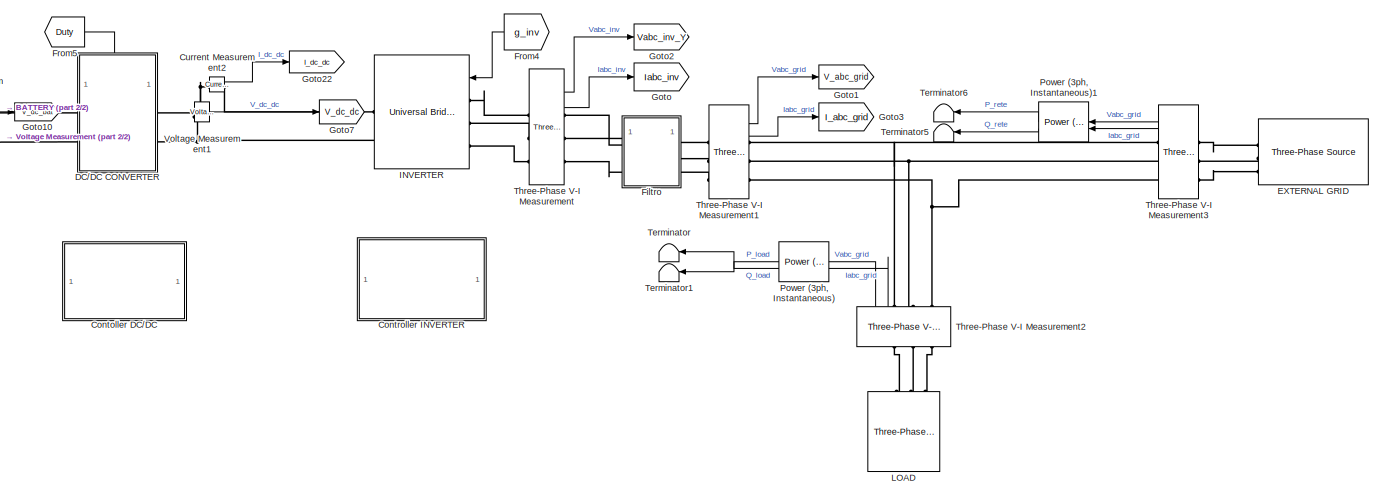
[diagram: root canvas - part 1/2, most of the canvas]
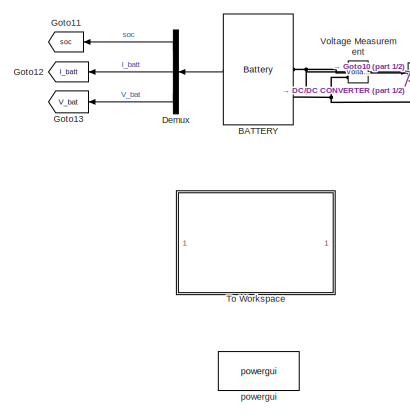
[diagram: root canvas - part 2/2, left side, full height]
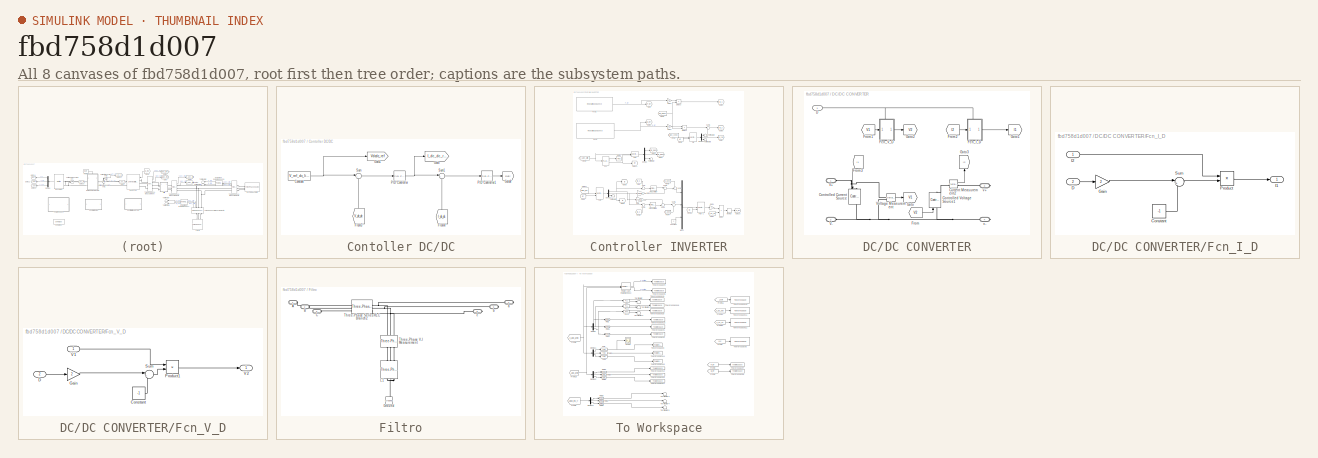
[diagram: thumbnail index - all 8 canvases of the model, root first then tree order]
MODEL slx_fbd758d1d007
KIND model
CONFIG AbsTol = auto
CONFIG EnableMultiTasking = off
CONFIG FixedStep = auto
CONFIG MaxStep = auto
CONFIG MinStep = auto
CONFIG RelTol = 1e-3
CONFIG SampleTimeConstraint = Unconstrained
CONFIG SolverName = FixedStepDiscrete
CONFIG StartTime = 0.0
CONFIG StopTime = 30000
BLOCK [Reference] BATTERY  REF=spsBatteryLib/Battery
  SourceBlock = spsBatteryLib/Battery
  SourceType = Battery
BLOCK [SubSystem] Contoller DC//DC
BLOCK [Constant] Contoller DC//DC/Constant
  Value = V_ref_dc_link
BLOCK [From] Contoller DC//DC/From4
  GotoTag = I_dc_dc
  NameLocation = right
  TagVisibility = global
BLOCK [From] Contoller DC//DC/From5
  GotoTag = V_dc_dc
  NameLocation = right
  TagVisibility = global
BLOCK [Goto] Contoller DC//DC/Goto
  GotoTag = I_dc_dc_ref
  TagVisibility = global
BLOCK [Goto] Contoller DC//DC/Goto1
  GotoTag = Vdcdc_ref
  TagVisibility = global
BLOCK [Goto] Contoller DC//DC/Goto8
  GotoTag = Duty
  TagVisibility = global
BLOCK [Reference] Contoller DC//DC/PID Controller  REF=slpidlib/PID Controller
  SourceBlock = slpidlib/PID Controller
  SourceType = PID 1dof
BLOCK [Reference] Contoller DC//DC/PID Controller1  REF=slpidlib/PID Controller
  SourceBlock = slpidlib/PID Controller
  SourceType = PID 1dof
BLOCK [Sum] Contoller DC//DC/Sum
  Inputs = |+-
BLOCK [Sum] Contoller DC//DC/Sum1
  Inputs = |+-
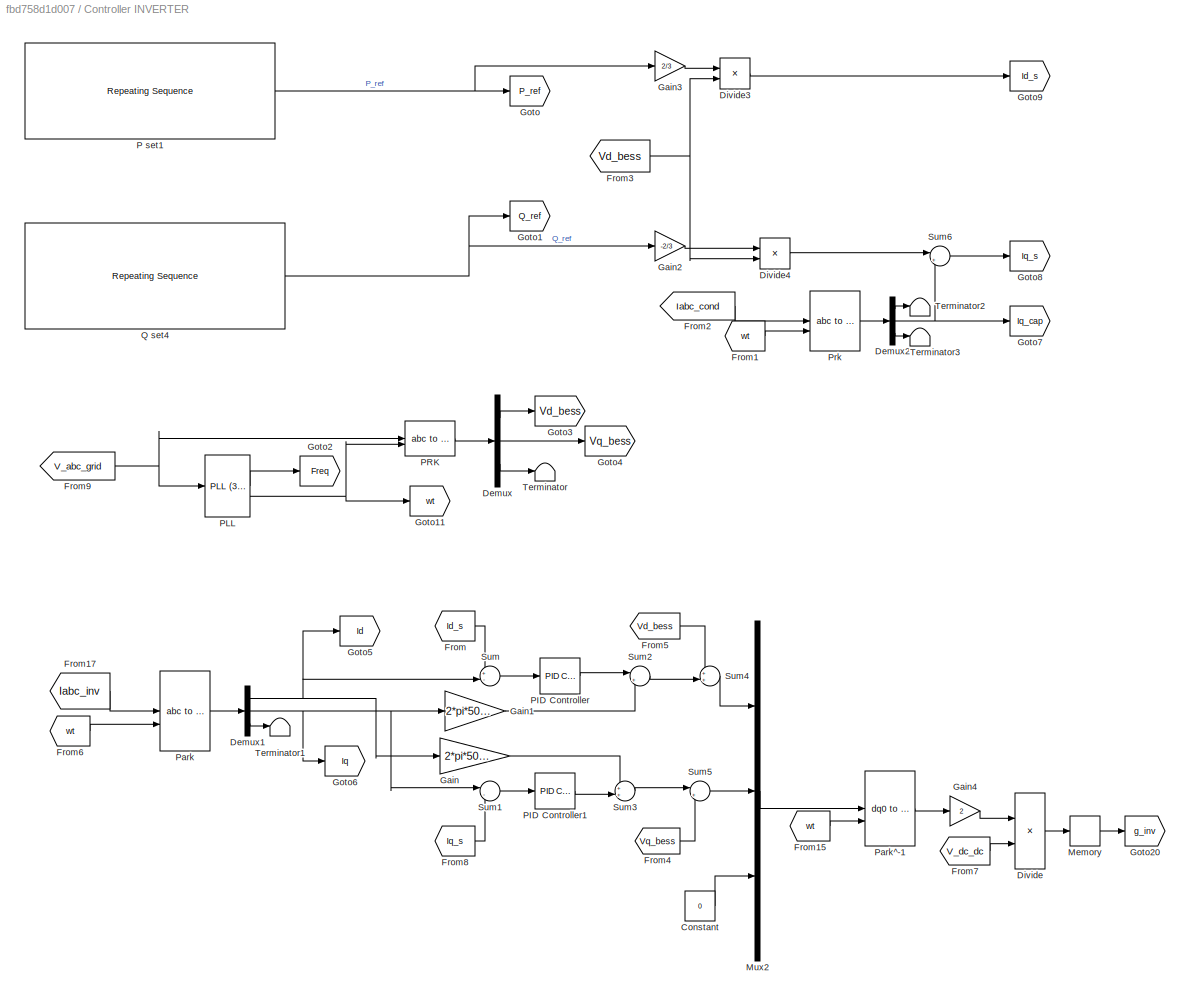
BLOCK [SubSystem] Controller INVERTER
BLOCK [Constant] Controller INVERTER/Constant
  Value = 0
BLOCK [Demux] Controller INVERTER/Demux
  Outputs = 3
BLOCK [Demux] Controller INVERTER/Demux1
  Outputs = 3
BLOCK [Demux] Controller INVERTER/Demux2
  Outputs = 3
BLOCK [Product] Controller INVERTER/Divide
  Inputs = */
BLOCK [Product] Controller INVERTER/Divide3
  Inputs = */
  NameLocation = top
BLOCK [Product] Controller INVERTER/Divide4
  Inputs = */
  NameLocation = top
BLOCK [From] Controller INVERTER/From
  GotoTag = Id_s
  TagVisibility = global
BLOCK [From] Controller INVERTER/From1
  GotoTag = wt
  TagVisibility = global
BLOCK [From] Controller INVERTER/From15
  GotoTag = wt
  TagVisibility = global
BLOCK [From] Controller INVERTER/From17
  GotoTag = Iabc_inv
  NameLocation = top
  TagVisibility = global
BLOCK [From] Controller INVERTER/From2
  GotoTag = Iabc_cond
  TagVisibility = global
BLOCK [From] Controller INVERTER/From3
  GotoTag = Vd_bess
  TagVisibility = global
BLOCK [From] Controller INVERTER/From4
  GotoTag = Vq_bess
  TagVisibility = global
BLOCK [From] Controller INVERTER/From5
  GotoTag = Vd_bess
  TagVisibility = global
BLOCK [From] Controller INVERTER/From6
  GotoTag = wt
  TagVisibility = global
BLOCK [From] Controller INVERTER/From7
  GotoTag = V_dc_dc
  TagVisibility = global
BLOCK [From] Controller INVERTER/From8
  GotoTag = Iq_s
  TagVisibility = global
BLOCK [From] Controller INVERTER/From9
  GotoTag = V_abc_grid
  TagVisibility = global
BLOCK [Gain] Controller INVERTER/Gain
  Gain = 2*pi*50*lf
BLOCK [Gain] Controller INVERTER/Gain1
  Gain = 2*pi*50*lf
BLOCK [Gain] Controller INVERTER/Gain2
  Gain = -2/3
BLOCK [Gain] Controller INVERTER/Gain3
  Gain = 2/3
BLOCK [Gain] Controller INVERTER/Gain4
  Gain = 2
BLOCK [Goto] Controller INVERTER/Goto
  GotoTag = P_ref
  TagVisibility = global
BLOCK [Goto] Controller INVERTER/Goto1
  GotoTag = Q_ref
  TagVisibility = global
BLOCK [Goto] Controller INVERTER/Goto11
  GotoTag = wt
  TagVisibility = global
BLOCK [Goto] Controller INVERTER/Goto2
  GotoTag = Freq
  TagVisibility = global
BLOCK [Goto] Controller INVERTER/Goto20
  GotoTag = g_inv
  TagVisibility = global
BLOCK [Goto] Controller INVERTER/Goto3
  GotoTag = Vd_bess
  TagVisibility = global
BLOCK [Goto] Controller INVERTER/Goto4
  GotoTag = Vq_bess
  TagVisibility = global
BLOCK [Goto] Controller INVERTER/Goto5
  GotoTag = Id
  TagVisibility = global
BLOCK [Goto] Controller INVERTER/Goto6
  GotoTag = Iq
  TagVisibility = global
BLOCK [Goto] Controller INVERTER/Goto7
  GotoTag = Iq_cap
  TagVisibility = global
BLOCK [Goto] Controller INVERTER/Goto8
  GotoTag = Iq_s
  TagVisibility = global
BLOCK [Goto] Controller INVERTER/Goto9
  GotoTag = Id_s
  TagVisibility = global
BLOCK [Memory] Controller INVERTER/Memory
  InheritSampleTime = on
  InitialCondition = 0.1
BLOCK [Mux] Controller INVERTER/Mux2
  DisplayOption = bar
  Inputs = 3
BLOCK [Reference] Controller INVERTER/P set1  REF=simulink/Sources/Repeating
Sequence
  NameLocation = top
  SourceBlock = simulink/Sources/Repeating\nSequence
  SourceType = Repeating table
BLOCK [Reference] Controller INVERTER/PID Controller  REF=slpidlib/PID Controller
  SourceBlock = slpidlib/PID Controller
  SourceType = PID 1dof
BLOCK [Reference] Controller INVERTER/PID Controller1  REF=slpidlib/PID Controller
  SourceBlock = slpidlib/PID Controller
  SourceType = PID 1dof
BLOCK [Reference] Controller INVERTER/PLL  REF=spsPLL3phLib/PLL
(3ph)
  SourceBlock = spsPLL3phLib/PLL\n(3ph)
  SourceType = PLL (3ph)
BLOCK [Reference] Controller INVERTER/PRK  REF=spsabctodq0Lib/abc to dq0
  SourceBlock = spsabctodq0Lib/abc to dq0
  SourceType = abc to dq0 Transformation
BLOCK [Reference] Controller INVERTER/Park  REF=spsabctodq0Lib/abc to dq0
  SourceBlock = spsabctodq0Lib/abc to dq0
  SourceType = abc to dq0 Transformation
BLOCK [Reference] Controller INVERTER/Park^-1  REF=spsdq0toabcLib/dq0 to abc
  SourceBlock = spsdq0toabcLib/dq0 to abc
  SourceType = dq0 to abc Transformation
BLOCK [Reference] Controller INVERTER/Prk  REF=spsabctodq0Lib/abc to dq0
  SourceBlock = spsabctodq0Lib/abc to dq0
  SourceType = abc to dq0 Transformation
BLOCK [Reference] Controller INVERTER/Q set4  REF=simulink/Sources/Repeating
Sequence
  NameLocation = top
  SourceBlock = simulink/Sources/Repeating\nSequence
  SourceType = Repeating table
BLOCK [Sum] Controller INVERTER/Sum
  Inputs = +-|
BLOCK [Sum] Controller INVERTER/Sum1
  Inputs = |-+
BLOCK [Sum] Controller INVERTER/Sum2
  Inputs = |+-
BLOCK [Sum] Controller INVERTER/Sum3
  Inputs = ++|
BLOCK [Sum] Controller INVERTER/Sum4
  Inputs = ++|
BLOCK [Sum] Controller INVERTER/Sum5
  Inputs = |++
BLOCK [Sum] Controller INVERTER/Sum6
  Inputs = |++
BLOCK [Terminator] Controller INVERTER/Terminator
BLOCK [Terminator] Controller INVERTER/Terminator1
BLOCK [Terminator] Controller INVERTER/Terminator2
BLOCK [Terminator] Controller INVERTER/Terminator3
BLOCK [Reference] Current Measurement2  REF=spsCurrentMeasurementLib/Current Measurement
  SourceBlock = spsCurrentMeasurementLib/Current Measurement
  SourceType = Current Measurement
  UserDataPersistent = on
BLOCK [SubSystem] DC//DC CONVERTER
  PortSchema = {"entries":[{"content":{"sides":[{"content":{"connectorIds":["LConn1","LConn2"]},"type":"ConnectorPlacement.EquallySpacedRectSide","uuid":"1063a80c-0db9-4e6a-b0a1-ad7a8a9cb9ed"},{"content":{"connectorIds":["RConn1","RConn2"],"side":"RIGHT"},"type":"ConnectorPlacement.EquallySpacedRectSide","uuid":"d09a7538-6c2e-450d-96ff-912ee6979d92"},{"content":{"connectorIds":["In1"],"side":"TOP"},"type":"Conne...<+412ch>
BLOCK [Reference] DC//DC CONVERTER/Controlled Current Source  REF=spsControlledCurrentSourceLib/Controlled Current Source
  NameLocation = left
  SourceBlock = spsControlledCurrentSourceLib/Controlled Current Source
  SourceType = Controlled Current Source
BLOCK [Reference] DC//DC CONVERTER/Controlled Voltage Source1  REF=spsControlledVoltageSourceLib/Controlled Voltage Source
  NameLocation = right
  SourceBlock = spsControlledVoltageSourceLib/Controlled Voltage Source
  SourceType = Controlled Voltage Source
BLOCK [Reference] DC//DC CONVERTER/Current Measurement2  REF=spsCurrentMeasurementLib/Current Measurement
  SourceBlock = spsCurrentMeasurementLib/Current Measurement
  SourceType = Current Measurement
  UserDataPersistent = on
BLOCK [Inport] DC//DC CONVERTER/D
BLOCK [SubSystem] DC//DC CONVERTER/Fcn_I_D
  PortSchema = {"entries":[{"content":{"sides":[{"content":{"connectorIds":["In1"]},"type":"ConnectorPlacement.EquallySpacedRectSide","uuid":"c3b5bf8f-c0a6-4eff-a00e-7fb1c6213418"},{"content":{"connectorIds":["Out1"],"side":"RIGHT"},"type":"ConnectorPlacement.EquallySpacedRectSide","uuid":"03805e13-a53e-47ff-ab0e-f9f14d4ce48a"},{"content":{"connectorIds":["In2"],"side":"TOP"},"type":"ConnectorPlacement.EquallySp...<+389ch>
BLOCK [Constant] DC//DC CONVERTER/Fcn_I_D/Constant
  Value = -1
BLOCK [Inport] DC//DC CONVERTER/Fcn_I_D/D
  Port = 2
BLOCK [Gain] DC//DC CONVERTER/Fcn_I_D/Gain
  Gain = 2
BLOCK [Outport] DC//DC CONVERTER/Fcn_I_D/I1
BLOCK [Inport] DC//DC CONVERTER/Fcn_I_D/I2
BLOCK [Product] DC//DC CONVERTER/Fcn_I_D/Product
BLOCK [Sum] DC//DC CONVERTER/Fcn_I_D/Sum
  Inputs = |++
BLOCK [SubSystem] DC//DC CONVERTER/Fcn_V_D
  PortSchema = {"entries":[{"content":{"sides":[{"content":{"connectorIds":["In1"]},"type":"ConnectorPlacement.EquallySpacedRectSide","uuid":"c3b5bf8f-c0a6-4eff-a00e-7fb1c6213418"},{"content":{"connectorIds":["Out1"],"side":"RIGHT"},"type":"ConnectorPlacement.EquallySpacedRectSide","uuid":"03805e13-a53e-47ff-ab0e-f9f14d4ce48a"},{"content":{"connectorIds":["In2"],"side":"TOP"},"type":"ConnectorPlacement.EquallySp...<+389ch>
BLOCK [Constant] DC//DC CONVERTER/Fcn_V_D/Constant
  Value = -1
BLOCK [Inport] DC//DC CONVERTER/Fcn_V_D/D
  Port = 2
BLOCK [Gain] DC//DC CONVERTER/Fcn_V_D/Gain
  Gain = 2
BLOCK [Product] DC//DC CONVERTER/Fcn_V_D/Product1
BLOCK [Sum] DC//DC CONVERTER/Fcn_V_D/Sum
  Inputs = |++
BLOCK [Inport] DC//DC CONVERTER/Fcn_V_D/V1
BLOCK [Outport] DC//DC CONVERTER/Fcn_V_D/V2
BLOCK [From] DC//DC CONVERTER/From
  GotoTag = V2
  TagVisibility = global
BLOCK [From] DC//DC CONVERTER/From1
  GotoTag = V1
  TagVisibility = global
BLOCK [From] DC//DC CONVERTER/From2
  GotoTag = I2
  TagVisibility = global
BLOCK [From] DC//DC CONVERTER/From3
  GotoTag = I1
  NameLocation = left
  TagVisibility = global
BLOCK [Goto] DC//DC CONVERTER/Goto
  GotoTag = V1
  TagVisibility = global
BLOCK [Goto] DC//DC CONVERTER/Goto1
  GotoTag = I1
  TagVisibility = global
BLOCK [Goto] DC//DC CONVERTER/Goto2
  GotoTag = V2
  TagVisibility = global
BLOCK [Goto] DC//DC CONVERTER/Goto3
  GotoTag = I2
  NameLocation = right
  TagVisibility = global
BLOCK [PMIOPort] DC//DC CONVERTER/V+
  Side = Left
BLOCK [PMIOPort] DC//DC CONVERTER/V-
  Port = 2
  Side = Left
BLOCK [Reference] DC//DC CONVERTER/Voltage Measurement  REF=spsVoltageMeasurementLib/Voltage Measurement
  SourceBlock = spsVoltageMeasurementLib/Voltage Measurement
  SourceType = Voltage Measurement
  UserDataPersistent = on
BLOCK [PMIOPort] DC//DC CONVERTER/v+
  Port = 3
  Side = Right
BLOCK [PMIOPort] DC//DC CONVERTER/v-
  Port = 4
  Side = Right
BLOCK [Demux] Demux
  Outputs = 3
BLOCK [Reference] EXTERNAL GRID  REF=spsThreePhaseSourceLib/Three-Phase Source
  SourceBlock = spsThreePhaseSourceLib/Three-Phase Source
  SourceType = Three-Phase Source
BLOCK [SubSystem] Filtro
BLOCK [PMIOPort] Filtro/A
  Side = Left
BLOCK [PMIOPort] Filtro/B
  Port = 2
  Side = Left
BLOCK [PMIOPort] Filtro/C
  Port = 3
  Side = Left
BLOCK [Reference] Filtro/Ground  REF=spsGroundLib/Ground
  NameLocation = right
  SourceBlock = spsGroundLib/Ground
  SourceType = Ground
BLOCK [Reference] Filtro/L1  REF=spsThreePhaseSeriesRLCBranchLib/Three-Phase
Series RLC Branch
  AttributesFormatString = \n
  NameLocation = left
  SourceBlock = spsThreePhaseSeriesRLCBranchLib/Three-Phase\nSeries RLC Branch
  SourceType = Three-Phase Series RLC Branch
BLOCK [Reference] Filtro/Three-Phase Series RLC Branch2  REF=spsThreePhaseSeriesRLCBranchLib/Three-Phase
Series RLC Branch
  AttributesFormatString = \n
  SourceBlock = spsThreePhaseSeriesRLCBranchLib/Three-Phase\nSeries RLC Branch
  SourceType = Three-Phase Series RLC Branch
BLOCK [Reference] Filtro/Three-Phase V-I Measurement  REF=spsThreePhaseVIMeasurementLib/Three-Phase
V-I Measurement
  NameLocation = left
  SourceBlock = spsThreePhaseVIMeasurementLib/Three-Phase\nV-I Measurement
  SourceType = Three-Phase VI Measurement
BLOCK [PMIOPort] Filtro/a
  Port = 4
  Side = Right
BLOCK [PMIOPort] Filtro/b
  Port = 5
  Side = Right
BLOCK [PMIOPort] Filtro/c
  Port = 6
  Side = Right
BLOCK [From] From4
  GotoTag = g_inv
  TagVisibility = global
BLOCK [From] From5
  GotoTag = Duty
  TagVisibility = global
BLOCK [Goto] Goto
  GotoTag = Iabc_inv
  TagVisibility = global
BLOCK [Goto] Goto1
  GotoTag = V_abc_grid
  TagVisibility = global
BLOCK [Goto] Goto10
  GotoTag = V_dc_bat
  TagVisibility = global
BLOCK [Goto] Goto11
  GotoTag = soc
  TagVisibility = global
BLOCK [Goto] Goto12
  GotoTag = I_batt
  TagVisibility = global
BLOCK [Goto] Goto13
  GotoTag = V_bat
  TagVisibility = global
BLOCK [Goto] Goto2
  GotoTag = Vabc_inv_Y
  TagVisibility = global
BLOCK [Goto] Goto22
  GotoTag = I_dc_dc
  TagVisibility = global
BLOCK [Goto] Goto3
  GotoTag = I_abc_grid
  TagVisibility = global
BLOCK [Goto] Goto7
  GotoTag = V_dc_dc
  TagVisibility = global
BLOCK [Reference] INVERTER  REF=spsUniversalBridgeLib/Universal Bridge
  SourceBlock = spsUniversalBridgeLib/Universal Bridge
  SourceType = Universal Bridge
BLOCK [Reference] LOAD  REF=spsThreePhaseSeriesRLCLoadLib/Three-Phase
Series RLC Load
  AttributesFormatString = \n
  NameLocation = left
  SourceBlock = spsThreePhaseSeriesRLCLoadLib/Three-Phase\nSeries RLC Load
  SourceType = Three-Phase Series RLC Load
BLOCK [Reference] Power (3ph, Instantaneous)  REF=spsPower3phInstantaneousLib/Power
(3ph, Instantaneous)
  NameLocation = top
  SourceBlock = spsPower3phInstantaneousLib/Power\n(3ph, Instantaneous)
  SourceType = Power (3ph, Instantaneous)
BLOCK [Reference] Power (3ph, Instantaneous)1  REF=spsPower3phInstantaneousLib/Power
(3ph, Instantaneous)
  NameLocation = top
  SourceBlock = spsPower3phInstantaneousLib/Power\n(3ph, Instantaneous)
  SourceType = Power (3ph, Instantaneous)
BLOCK [Terminator] Terminator
  NameLocation = top
BLOCK [Terminator] Terminator1
  NameLocation = top
BLOCK [Terminator] Terminator5
  NameLocation = top
BLOCK [Terminator] Terminator6
  NameLocation = top
BLOCK [Reference] Three-Phase V-I Measurement  REF=spsThreePhaseVIMeasurementLib/Three-Phase
V-I Measurement
  NameLocation = top
  SourceBlock = spsThreePhaseVIMeasurementLib/Three-Phase\nV-I Measurement
  SourceType = Three-Phase VI Measurement
BLOCK [Reference] Three-Phase V-I Measurement1  REF=spsThreePhaseVIMeasurementLib/Three-Phase
V-I Measurement
  NameLocation = top
  SourceBlock = spsThreePhaseVIMeasurementLib/Three-Phase\nV-I Measurement
  SourceType = Three-Phase VI Measurement
BLOCK [Reference] Three-Phase V-I Measurement2  REF=spsThreePhaseVIMeasurementLib/Three-Phase
V-I Measurement
  NameLocation = left
  SourceBlock = spsThreePhaseVIMeasurementLib/Three-Phase\nV-I Measurement
  SourceType = Three-Phase VI Measurement
BLOCK [Reference] Three-Phase V-I Measurement3  REF=spsThreePhaseVIMeasurementLib/Three-Phase
V-I Measurement
  SourceBlock = spsThreePhaseVIMeasurementLib/Three-Phase\nV-I Measurement
  SourceType = Three-Phase VI Measurement
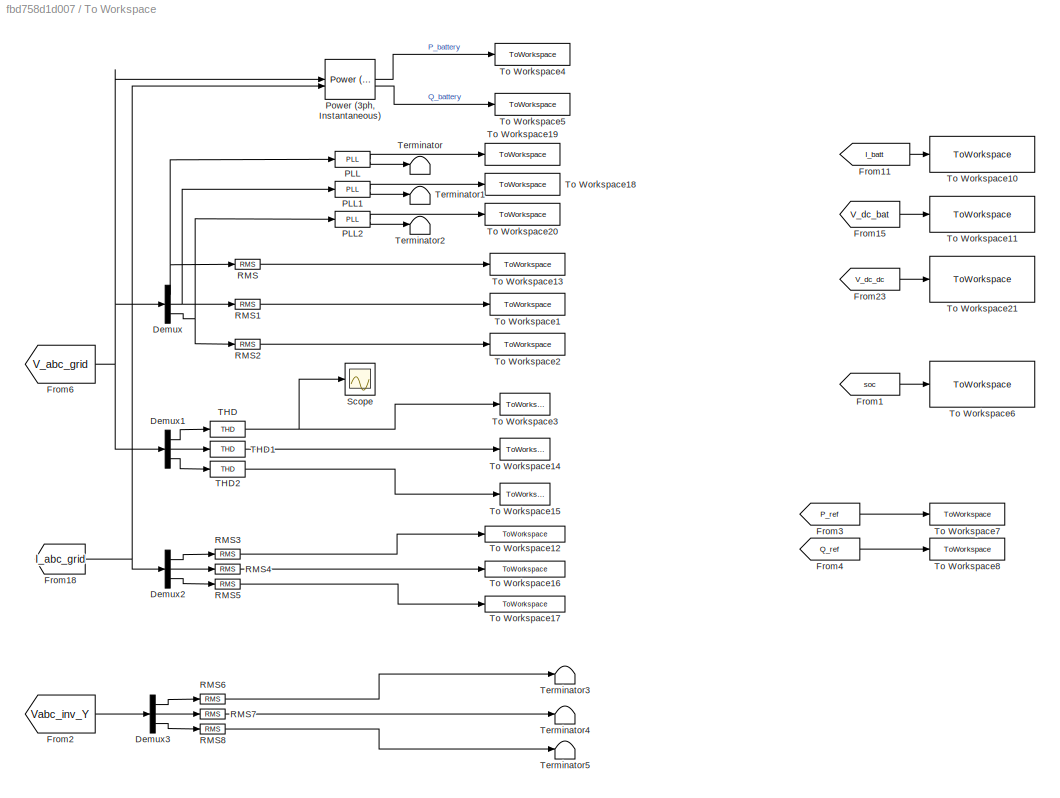
BLOCK [SubSystem] To Workspace
BLOCK [Demux] To Workspace/Demux
  Outputs = 3
BLOCK [Demux] To Workspace/Demux1
  Outputs = 3
BLOCK [Demux] To Workspace/Demux2
  Outputs = 3
BLOCK [Demux] To Workspace/Demux3
  Outputs = 3
BLOCK [From] To Workspace/From1
  GotoTag = soc
  TagVisibility = global
BLOCK [From] To Workspace/From11
  GotoTag = I_batt
  TagVisibility = global
BLOCK [From] To Workspace/From15
  GotoTag = V_dc_bat
  TagVisibility = global
BLOCK [From] To Workspace/From18
  GotoTag = I_abc_grid
  TagVisibility = global
BLOCK [From] To Workspace/From2
  GotoTag = Vabc_inv_Y
  TagVisibility = global
BLOCK [From] To Workspace/From23
  GotoTag = V_dc_dc
  TagVisibility = global
BLOCK [From] To Workspace/From3
  GotoTag = P_ref
  TagVisibility = global
BLOCK [From] To Workspace/From4
  GotoTag = Q_ref
  TagVisibility = global
BLOCK [From] To Workspace/From6
  GotoTag = V_abc_grid
  TagVisibility = global
BLOCK [Reference] To Workspace/PLL  REF=spsPLLLib/PLL
  SourceBlock = spsPLLLib/PLL
  SourceType = PLL
BLOCK [Reference] To Workspace/PLL1  REF=spsPLLLib/PLL
  SourceBlock = spsPLLLib/PLL
  SourceType = PLL
BLOCK [Reference] To Workspace/PLL2  REF=spsPLLLib/PLL
  SourceBlock = spsPLLLib/PLL
  SourceType = PLL
BLOCK [Reference] To Workspace/Power (3ph, Instantaneous)  REF=spsPower3phInstantaneousLib/Power
(3ph, Instantaneous)
  SourceBlock = spsPower3phInstantaneousLib/Power\n(3ph, Instantaneous)
  SourceType = Power (3ph, Instantaneous)
BLOCK [Reference] To Workspace/RMS  REF=spsRMSLib/RMS
  SourceBlock = spsRMSLib/RMS
  SourceType = RMS
BLOCK [Reference] To Workspace/RMS1  REF=spsRMSLib/RMS
  SourceBlock = spsRMSLib/RMS
  SourceType = RMS
BLOCK [Reference] To Workspace/RMS2  REF=spsRMSLib/RMS
  SourceBlock = spsRMSLib/RMS
  SourceType = RMS
BLOCK [Reference] To Workspace/RMS3  REF=spsRMSLib/RMS
  SourceBlock = spsRMSLib/RMS
  SourceType = RMS
BLOCK [Reference] To Workspace/RMS4  REF=spsRMSLib/RMS
  SourceBlock = spsRMSLib/RMS
  SourceType = RMS
BLOCK [Reference] To Workspace/RMS5  REF=spsRMSLib/RMS
  SourceBlock = spsRMSLib/RMS
  SourceType = RMS
BLOCK [Reference] To Workspace/RMS6  REF=spsRMSLib/RMS
  SourceBlock = spsRMSLib/RMS
  SourceType = RMS
BLOCK [Reference] To Workspace/RMS7  REF=spsRMSLib/RMS
  SourceBlock = spsRMSLib/RMS
  SourceType = RMS
BLOCK [Reference] To Workspace/RMS8  REF=spsRMSLib/RMS
  SourceBlock = spsRMSLib/RMS
  SourceType = RMS
BLOCK [Scope] To Workspace/Scope
  Floating = off
  NumInputPorts = 1
  ScopeSpecificationString = Simulink.scopes.TimeScopeBlockCfg('CurrentConfiguration', extmgr.ConfigurationSet(extmgr.Configuration('Core','General UI',true),extmgr.Configuration('Core','Source UI',true),extmgr.Configuration('Sources','WiredSimulink',true,'DataLoggingVariableName','ScopeData1'),extmgr.Configuration('Visuals','Time Domain',true,'SerializedDisplays',{struct('MinYLimReal','-0.00005','MaxYLimReal','0.00014','YLab...<+1435ch>
BLOCK [Reference] To Workspace/THD  REF=spsTHDLib/THD
  SourceBlock = spsTHDLib/THD
  SourceType = THD
BLOCK [Reference] To Workspace/THD1  REF=spsTHDLib/THD
  SourceBlock = spsTHDLib/THD
  SourceType = THD
BLOCK [Reference] To Workspace/THD2  REF=spsTHDLib/THD
  SourceBlock = spsTHDLib/THD
  SourceType = THD
BLOCK [Terminator] To Workspace/Terminator
BLOCK [Terminator] To Workspace/Terminator1
BLOCK [Terminator] To Workspace/Terminator2
BLOCK [Terminator] To Workspace/Terminator3
BLOCK [Terminator] To Workspace/Terminator4
BLOCK [Terminator] To Workspace/Terminator5
BLOCK [ToWorkspace] To Workspace/To Workspace1
  FixptAsFi = on
  MaxDataPoints = inf
  SampleTime = T_camp
  VariableName = V_b
BLOCK [ToWorkspace] To Workspace/To Workspace10
  FixptAsFi = on
  MaxDataPoints = inf
  SampleTime = T_camp
  VariableName = I_dc_bat
BLOCK [ToWorkspace] To Workspace/To Workspace11
  FixptAsFi = on
  MaxDataPoints = inf
  SampleTime = T_camp
  VariableName = V_dc_bat
BLOCK [ToWorkspace] To Workspace/To Workspace12
  FixptAsFi = on
  MaxDataPoints = inf
  SampleTime = T_camp
  VariableName = I_a
BLOCK [ToWorkspace] To Workspace/To Workspace13
  FixptAsFi = on
  MaxDataPoints = inf
  SampleTime = T_camp
  VariableName = V_a
BLOCK [ToWorkspace] To Workspace/To Workspace14
  FixptAsFi = on
  MaxDataPoints = inf
  SampleTime = T_camp
  VariableName = THD_b
BLOCK [ToWorkspace] To Workspace/To Workspace15
  FixptAsFi = on
  MaxDataPoints = inf
  SampleTime = T_camp
  VariableName = THD_c
BLOCK [ToWorkspace] To Workspace/To Workspace16
  FixptAsFi = on
  MaxDataPoints = inf
  SampleTime = T_camp
  VariableName = I_b
BLOCK [ToWorkspace] To Workspace/To Workspace17
  FixptAsFi = on
  MaxDataPoints = inf
  SampleTime = T_camp
  VariableName = I_c
BLOCK [ToWorkspace] To Workspace/To Workspace18
  FixptAsFi = on
  MaxDataPoints = inf
  SampleTime = T_camp
  VariableName = f_b
BLOCK [ToWorkspace] To Workspace/To Workspace19
  FixptAsFi = on
  MaxDataPoints = inf
  SampleTime = T_camp
  VariableName = f_a
BLOCK [ToWorkspace] To Workspace/To Workspace2
  FixptAsFi = on
  MaxDataPoints = inf
  SampleTime = T_camp
  VariableName = V_c
BLOCK [ToWorkspace] To Workspace/To Workspace20
  FixptAsFi = on
  MaxDataPoints = inf
  SampleTime = T_camp
  VariableName = f_c
BLOCK [ToWorkspace] To Workspace/To Workspace21
  FixptAsFi = on
  MaxDataPoints = inf
  SampleTime = T_camp
  VariableName = V_dc_link
BLOCK [ToWorkspace] To Workspace/To Workspace3
  FixptAsFi = on
  MaxDataPoints = inf
  SampleTime = T_camp
  VariableName = THD_a
BLOCK [ToWorkspace] To Workspace/To Workspace4
  FixptAsFi = on
  MaxDataPoints = inf
  SampleTime = T_camp
  VariableName = P_bat
BLOCK [ToWorkspace] To Workspace/To Workspace5
  FixptAsFi = on
  MaxDataPoints = inf
  SampleTime = T_camp
  VariableName = Q_bat
BLOCK [ToWorkspace] To Workspace/To Workspace6
  FixptAsFi = on
  MaxDataPoints = inf
  SampleTime = T_camp
  VariableName = SOC
BLOCK [ToWorkspace] To Workspace/To Workspace7
  FixptAsFi = on
  MaxDataPoints = inf
  SampleTime = T_camp
  VariableName = P_ref
BLOCK [ToWorkspace] To Workspace/To Workspace8
  FixptAsFi = on
  MaxDataPoints = inf
  SampleTime = T_camp
  VariableName = Q_ref
BLOCK [Reference] Voltage Measurement  REF=spsVoltageMeasurementLib/Voltage Measurement
  SourceBlock = spsVoltageMeasurementLib/Voltage Measurement
  SourceType = Voltage Measurement
  UserDataPersistent = on
BLOCK [Reference] Voltage Measurement1  REF=spsVoltageMeasurementLib/Voltage Measurement
  SourceBlock = spsVoltageMeasurementLib/Voltage Measurement
  SourceType = Voltage Measurement
  UserDataPersistent = on
BLOCK [Reference] powergui  REF=spspowerguiLib/powergui
  Priority = 1
  SourceBlock = spspowerguiLib/powergui
  SourceType = PSB option menu block
LINE BATTERY:1 -> Demux:1
NET Contoller DC//DC/Constant:1 -> Contoller DC//DC/Goto1:1, Contoller DC//DC/Sum:1
LINE Contoller DC//DC/From4:1 -> Contoller DC//DC/Sum1:2
LINE Contoller DC//DC/From5:1 -> Contoller DC//DC/Sum:2
LINE Contoller DC//DC/PID Controller1:1 -> Contoller DC//DC/Goto8:1
NET Contoller DC//DC/PID Controller:1 -> Contoller DC//DC/Goto:1, Contoller DC//DC/Sum1:1
LINE Contoller DC//DC/Sum1:1 -> Contoller DC//DC/PID Controller1:1
LINE Contoller DC//DC/Sum:1 -> Contoller DC//DC/PID Controller:1
LINE Controller INVERTER/Constant:1 -> Controller INVERTER/Mux2:3
NET Controller INVERTER/Demux1:1 -> Controller INVERTER/Gain:1, Controller INVERTER/Goto5:1, Controller INVERTER/Sum:2
NET Controller INVERTER/Demux1:2 -> Controller INVERTER/Gain1:1, Controller INVERTER/Goto6:1, Controller INVERTER/Sum1:1
LINE Controller INVERTER/Demux1:3 -> Controller INVERTER/Terminator1:1
LINE Controller INVERTER/Demux2:1 -> Controller INVERTER/Terminator2:1
NET Controller INVERTER/Demux2:2 -> Controller INVERTER/Goto7:1, Controller INVERTER/Sum6:2
LINE Controller INVERTER/Demux2:3 -> Controller INVERTER/Terminator3:1
LINE Controller INVERTER/Demux:1 -> Controller INVERTER/Goto3:1
LINE Controller INVERTER/Demux:2 -> Controller INVERTER/Goto4:1
LINE Controller INVERTER/Demux:3 -> Controller INVERTER/Terminator:1
LINE Controller INVERTER/Divide3:1 -> Controller INVERTER/Goto9:1
LINE Controller INVERTER/Divide4:1 -> Controller INVERTER/Sum6:1
LINE Controller INVERTER/Divide:1 -> Controller INVERTER/Memory:1
LINE Controller INVERTER/From15:1 -> Controller INVERTER/Park^-1:2
LINE Controller INVERTER/From17:1 -> Controller INVERTER/Park:1
LINE Controller INVERTER/From1:1 -> Controller INVERTER/Prk:2
LINE Controller INVERTER/From2:1 -> Controller INVERTER/Prk:1
NET Controller INVERTER/From3:1 -> Controller INVERTER/Divide3:2, Controller INVERTER/Divide4:2
LINE Controller INVERTER/From4:1 -> Controller INVERTER/Sum5:2
LINE Controller INVERTER/From5:1 -> Controller INVERTER/Sum4:1
LINE Controller INVERTER/From6:1 -> Controller INVERTER/Park:2
LINE Controller INVERTER/From7:1 -> Controller INVERTER/Divide:2
LINE Controller INVERTER/From8:1 -> Controller INVERTER/Sum1:2
NET Controller INVERTER/From9:1 -> Controller INVERTER/PLL:1, Controller INVERTER/PRK:1
LINE Controller INVERTER/From:1 -> Controller INVERTER/Sum:1
LINE Controller INVERTER/Gain1:1 -> Controller INVERTER/Sum2:2
LINE Controller INVERTER/Gain2:1 -> Controller INVERTER/Divide4:1
LINE Controller INVERTER/Gain3:1 -> Controller INVERTER/Divide3:1
LINE Controller INVERTER/Gain4:1 -> Controller INVERTER/Divide:1
LINE Controller INVERTER/Gain:1 -> Controller INVERTER/Sum3:1
LINE Controller INVERTER/Memory:1 -> Controller INVERTER/Goto20:1
LINE Controller INVERTER/Mux2:1 -> Controller INVERTER/Park^-1:1
NET Controller INVERTER/P set1:1 -> Controller INVERTER/Gain3:1, Controller INVERTER/Goto:1
LINE Controller INVERTER/PID Controller1:1 -> Controller INVERTER/Sum3:2
LINE Controller INVERTER/PID Controller:1 -> Controller INVERTER/Sum2:1
LINE Controller INVERTER/PLL:1 -> Controller INVERTER/Goto2:1
NET Controller INVERTER/PLL:2 -> Controller INVERTER/Goto11:1, Controller INVERTER/PRK:2
LINE Controller INVERTER/PRK:1 -> Controller INVERTER/Demux:1
LINE Controller INVERTER/Park:1 -> Controller INVERTER/Demux1:1
LINE Controller INVERTER/Park^-1:1 -> Controller INVERTER/Gain4:1
LINE Controller INVERTER/Prk:1 -> Controller INVERTER/Demux2:1
NET Controller INVERTER/Q set4:1 -> Controller INVERTER/Gain2:1, Controller INVERTER/Goto1:1
LINE Controller INVERTER/Sum1:1 -> Controller INVERTER/PID Controller1:1
LINE Controller INVERTER/Sum2:1 -> Controller INVERTER/Sum4:2
LINE Controller INVERTER/Sum3:1 -> Controller INVERTER/Sum5:1
LINE Controller INVERTER/Sum4:1 -> Controller INVERTER/Mux2:1
LINE Controller INVERTER/Sum5:1 -> Controller INVERTER/Mux2:2
LINE Controller INVERTER/Sum6:1 -> Controller INVERTER/Goto8:1
LINE Controller INVERTER/Sum:1 -> Controller INVERTER/PID Controller:1
LINE Current Measurement2:1 -> Goto22:1
LINE DC//DC CONVERTER/Current Measurement2:1 -> DC//DC CONVERTER/Goto3:1
NET DC//DC CONVERTER/D:1 -> DC//DC CONVERTER/Fcn_I_D:2, DC//DC CONVERTER/Fcn_V_D:2
LINE DC//DC CONVERTER/Fcn_I_D/Constant:1 -> DC//DC CONVERTER/Fcn_I_D/Sum:2
LINE DC//DC CONVERTER/Fcn_I_D/D:1 -> DC//DC CONVERTER/Fcn_I_D/Gain:1
LINE DC//DC CONVERTER/Fcn_I_D/Gain:1 -> DC//DC CONVERTER/Fcn_I_D/Sum:1
LINE DC//DC CONVERTER/Fcn_I_D/I2:1 -> DC//DC CONVERTER/Fcn_I_D/Product:1
LINE DC//DC CONVERTER/Fcn_I_D/Product:1 -> DC//DC CONVERTER/Fcn_I_D/I1:1
LINE DC//DC CONVERTER/Fcn_I_D/Sum:1 -> DC//DC CONVERTER/Fcn_I_D/Product:2
LINE DC//DC CONVERTER/Fcn_I_D:1 -> DC//DC CONVERTER/Goto1:1
LINE DC//DC CONVERTER/Fcn_V_D/Constant:1 -> DC//DC CONVERTER/Fcn_V_D/Sum:2
LINE DC//DC CONVERTER/Fcn_V_D/D:1 -> DC//DC CONVERTER/Fcn_V_D/Gain:1
LINE DC//DC CONVERTER/Fcn_V_D/Gain:1 -> DC//DC CONVERTER/Fcn_V_D/Sum:1
LINE DC//DC CONVERTER/Fcn_V_D/Product1:1 -> DC//DC CONVERTER/Fcn_V_D/V2:1
LINE DC//DC CONVERTER/Fcn_V_D/Sum:1 -> DC//DC CONVERTER/Fcn_V_D/Product1:2
LINE DC//DC CONVERTER/Fcn_V_D/V1:1 -> DC//DC CONVERTER/Fcn_V_D/Product1:1
LINE DC//DC CONVERTER/Fcn_V_D:1 -> DC//DC CONVERTER/Goto2:1
LINE DC//DC CONVERTER/From1:1 -> DC//DC CONVERTER/Fcn_V_D:1
LINE DC//DC CONVERTER/From2:1 -> DC//DC CONVERTER/Fcn_I_D:1
LINE DC//DC CONVERTER/From3:1 -> DC//DC CONVERTER/Controlled Current Source:1
LINE DC//DC CONVERTER/From:1 -> DC//DC CONVERTER/Controlled Voltage Source1:1
LINE DC//DC CONVERTER/Voltage Measurement:1 -> DC//DC CONVERTER/Goto:1
LINE Demux:1 -> Goto11:1
LINE Demux:2 -> Goto12:1
LINE Demux:3 -> Goto13:1
LINE From4:1 -> INVERTER:1
LINE From5:1 -> DC//DC CONVERTER:1
LINE Power (3ph, Instantaneous)1:1 -> Terminator6:1
LINE Power (3ph, Instantaneous)1:2 -> Terminator5:1
LINE Power (3ph, Instantaneous):1 -> Terminator1:1
LINE Power (3ph, Instantaneous):2 -> Terminator:1
LINE Three-Phase V-I Measurement1:1 -> Goto1:1
LINE Three-Phase V-I Measurement1:2 -> Goto3:1
LINE Three-Phase V-I Measurement2:1 -> Power (3ph, Instantaneous):1
LINE Three-Phase V-I Measurement2:2 -> Power (3ph, Instantaneous):2
LINE Three-Phase V-I Measurement3:1 -> Power (3ph, Instantaneous)1:1
LINE Three-Phase V-I Measurement3:2 -> Power (3ph, Instantaneous)1:2
LINE Three-Phase V-I Measurement:1 -> Goto2:1
LINE Three-Phase V-I Measurement:2 -> Goto:1
LINE To Workspace/Demux1:1 -> To Workspace/THD:1
LINE To Workspace/Demux1:2 -> To Workspace/THD1:1
LINE To Workspace/Demux1:3 -> To Workspace/THD2:1
LINE To Workspace/Demux2:1 -> To Workspace/RMS3:1
LINE To Workspace/Demux2:2 -> To Workspace/RMS4:1
LINE To Workspace/Demux2:3 -> To Workspace/RMS5:1
LINE To Workspace/Demux3:1 -> To Workspace/RMS6:1
LINE To Workspace/Demux3:2 -> To Workspace/RMS7:1
LINE To Workspace/Demux3:3 -> To Workspace/RMS8:1
NET To Workspace/Demux:1 -> To Workspace/PLL:1, To Workspace/RMS:1
NET To Workspace/Demux:2 -> To Workspace/PLL1:1, To Workspace/RMS1:1
NET To Workspace/Demux:3 -> To Workspace/PLL2:1, To Workspace/RMS2:1
LINE To Workspace/From11:1 -> To Workspace/To Workspace10:1
LINE To Workspace/From15:1 -> To Workspace/To Workspace11:1
NET To Workspace/From18:1 -> To Workspace/Demux2:1, To Workspace/Power (3ph, Instantaneous):2
LINE To Workspace/From1:1 -> To Workspace/To Workspace6:1
LINE To Workspace/From23:1 -> To Workspace/To Workspace21:1
LINE To Workspace/From2:1 -> To Workspace/Demux3:1
LINE To Workspace/From3:1 -> To Workspace/To Workspace7:1
LINE To Workspace/From4:1 -> To Workspace/To Workspace8:1
NET To Workspace/From6:1 -> To Workspace/Demux1:1, To Workspace/Demux:1, To Workspace/Power (3ph, Instantaneous):1
LINE To Workspace/PLL1:1 -> To Workspace/To Workspace18:1
LINE To Workspace/PLL1:2 -> To Workspace/Terminator1:1
LINE To Workspace/PLL2:1 -> To Workspace/To Workspace20:1
LINE To Workspace/PLL2:2 -> To Workspace/Terminator2:1
LINE To Workspace/PLL:1 -> To Workspace/To Workspace19:1
LINE To Workspace/PLL:2 -> To Workspace/Terminator:1
LINE To Workspace/Power (3ph, Instantaneous):1 -> To Workspace/To Workspace4:1
LINE To Workspace/Power (3ph, Instantaneous):2 -> To Workspace/To Workspace5:1
LINE To Workspace/RMS1:1 -> To Workspace/To Workspace1:1
LINE To Workspace/RMS2:1 -> To Workspace/To Workspace2:1
LINE To Workspace/RMS3:1 -> To Workspace/To Workspace12:1
LINE To Workspace/RMS4:1 -> To Workspace/To Workspace16:1
LINE To Workspace/RMS5:1 -> To Workspace/To Workspace17:1
LINE To Workspace/RMS6:1 -> To Workspace/Terminator3:1
LINE To Workspace/RMS7:1 -> To Workspace/Terminator4:1
LINE To Workspace/RMS8:1 -> To Workspace/Terminator5:1
LINE To Workspace/RMS:1 -> To Workspace/To Workspace13:1
LINE To Workspace/THD1:1 -> To Workspace/To Workspace14:1
LINE To Workspace/THD2:1 -> To Workspace/To Workspace15:1
NET To Workspace/THD:1 -> To Workspace/Scope:1, To Workspace/To Workspace3:1
LINE Voltage Measurement1:1 -> Goto7:1
LINE Voltage Measurement:1 -> Goto10:1
PNET net1: BATTERY:LConn1 -- DC//DC CONVERTER:LConn1 -- Voltage Measurement:LConn1
PNET net2: BATTERY:LConn2 -- DC//DC CONVERTER:LConn2 -- Voltage Measurement:LConn2
PNET net3: Current Measurement2:LConn1 -- DC//DC CONVERTER:RConn1 -- Voltage Measurement1:LConn1
PLINE Current Measurement2:RConn1 -- INVERTER:RConn1
PNET net4: DC//DC CONVERTER/Controlled Current Source:LConn1 -- DC//DC CONVERTER/V+:RConn1 -- DC//DC CONVERTER/Voltage Measurement:LConn1
PNET net5: DC//DC CONVERTER/Controlled Current Source:RConn1 -- DC//DC CONVERTER/Controlled Voltage Source1:LConn1 -- DC//DC CONVERTER/V-:RConn1 -- DC//DC CONVERTER/Voltage Measurement:LConn2 -- DC//DC CONVERTER/v-:RConn1
PLINE DC//DC CONVERTER/Controlled Voltage Source1:RConn1 -- DC//DC CONVERTER/Current Measurement2:LConn1
PLINE DC//DC CONVERTER/Current Measurement2:RConn1 -- DC//DC CONVERTER/v+:RConn1
PNET net6: DC//DC CONVERTER:RConn2 -- INVERTER:RConn2 -- Voltage Measurement1:LConn2
PLINE EXTERNAL GRID:RConn1 -- Three-Phase V-I Measurement3:LConn1
PLINE EXTERNAL GRID:RConn2 -- Three-Phase V-I Measurement3:LConn2
PLINE EXTERNAL GRID:RConn3 -- Three-Phase V-I Measurement3:LConn3
PLINE Filtro/A:RConn1 -- Filtro/Three-Phase Series RLC Branch2:LConn1
PLINE Filtro/B:RConn1 -- Filtro/Three-Phase Series RLC Branch2:LConn2
PLINE Filtro/C:RConn1 -- Filtro/Three-Phase Series RLC Branch2:LConn3
PNET net7: Filtro/Ground:LConn1 -- Filtro/L1:RConn1 -- Filtro/L1:RConn2 -- Filtro/L1:RConn3
PLINE Filtro/L1:LConn1 -- Filtro/Three-Phase V-I Measurement:RConn1
PLINE Filtro/L1:LConn2 -- Filtro/Three-Phase V-I Measurement:RConn2
PLINE Filtro/L1:LConn3 -- Filtro/Three-Phase V-I Measurement:RConn3
PNET net8: Filtro/Three-Phase Series RLC Branch2:RConn1 -- Filtro/Three-Phase V-I Measurement:LConn1 -- Filtro/a:RConn1
PNET net9: Filtro/Three-Phase Series RLC Branch2:RConn2 -- Filtro/Three-Phase V-I Measurement:LConn2 -- Filtro/b:RConn1
PNET net10: Filtro/Three-Phase Series RLC Branch2:RConn3 -- Filtro/Three-Phase V-I Measurement:LConn3 -- Filtro/c:RConn1
PLINE Filtro:LConn1 -- Three-Phase V-I Measurement:RConn1
PLINE Filtro:LConn2 -- Three-Phase V-I Measurement:RConn2
PLINE Filtro:LConn3 -- Three-Phase V-I Measurement:RConn3
PLINE Filtro:RConn1 -- Three-Phase V-I Measurement1:LConn1
PLINE Filtro:RConn2 -- Three-Phase V-I Measurement1:LConn2
PLINE Filtro:RConn3 -- Three-Phase V-I Measurement1:LConn3
PLINE INVERTER:LConn1 -- Three-Phase V-I Measurement:LConn1
PLINE INVERTER:LConn2 -- Three-Phase V-I Measurement:LConn2
PLINE INVERTER:LConn3 -- Three-Phase V-I Measurement:LConn3
PLINE LOAD:LConn1 -- Three-Phase V-I Measurement2:LConn1
PLINE LOAD:LConn2 -- Three-Phase V-I Measurement2:LConn2
PLINE LOAD:LConn3 -- Three-Phase V-I Measurement2:LConn3
PNET net11: Three-Phase V-I Measurement1:RConn1 -- Three-Phase V-I Measurement2:RConn1 -- Three-Phase V-I Measurement3:RConn1
PNET net12: Three-Phase V-I Measurement1:RConn2 -- Three-Phase V-I Measurement2:RConn2 -- Three-Phase V-I Measurement3:RConn2
PNET net13: Three-Phase V-I Measurement1:RConn3 -- Three-Phase V-I Measurement2:RConn3 -- Three-Phase V-I Measurement3:RConn3
note: NET lines group one-source signal fan-out (src -> all destinations, sorted); 1:1 wires keep LINE; PNET lines group multi-terminal physical nets as a canonical sorted terminal list (undirected conserving connections); 2-terminal nets keep the pairwise PLINE form
